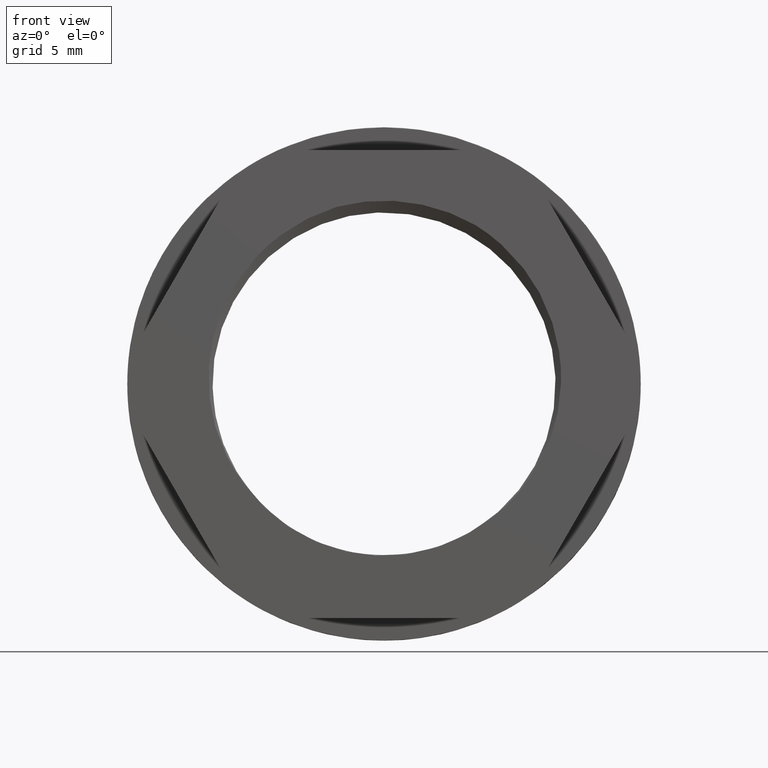
[diagram: clean part render]
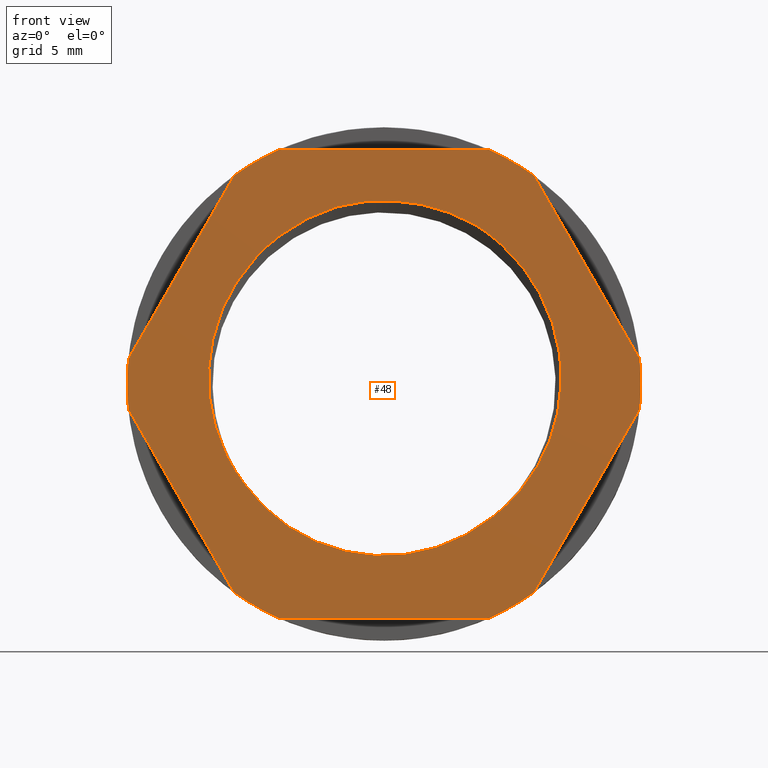
[diagram: same view with one face highlighted and labeled with its STEP entity id]
A machine part, front view. The second image highlights one B-rep face of the part: STEP entity #48.
In plain terms, the highlighted planar face has unit normal (-0, 1, 0).
Its self-contained STEP definition (entity closure, byte-faithful):
#36 = EDGE_CURVE ( 'NONE', #1014, #1024, #743, .T. ) ;
#48 = ADVANCED_FACE ( 'NONE', ( #817, #725 ), #738, .F. ) ;
#58 = EDGE_CURVE ( 'NONE', #1003, #1008, #1765, .T. ) ;
#64 = EDGE_CURVE ( 'NONE', #1030, #1020, #140, .T. ) ;
#80 = EDGE_CURVE ( 'NONE', #995, #1080, #1720, .T. ) ;
#83 = EDGE_CURVE ( 'NONE', #987, #991, #1731, .T. ) ;
#85 = EDGE_CURVE ( 'NONE', #997, #1057, #1733, .T. ) ;
#86 = EDGE_CURVE ( 'NONE', #1057, #1030, #149, .T. ) ;
#88 = EDGE_CURVE ( 'NONE', #1037, #1021, #1730, .T. ) ;
#96 = EDGE_CURVE ( 'NONE', #1008, #1014, #1791, .T. ) ;
#99 = EDGE_CURVE ( 'NONE', #993, #1006, #1771, .T. ) ;
#100 = EDGE_CURVE ( 'NONE', #1080, #1003, #278, .T. ) ;
#107 = EDGE_CURVE ( 'NONE', #991, #1037, #311, .T. ) ;
#110 = EDGE_CURVE ( 'NONE', #1001, #987, #1770, .T. ) ;
#112 = EDGE_CURVE ( 'NONE', #1021, #995, #375, .T. ) ;
#114 = EDGE_CURVE ( 'NONE', #1006, #1001, #353, .T. ) ;
#116 = EDGE_CURVE ( 'NONE', #1025, #993, #374, .T. ) ;
#121 = EDGE_CURVE ( 'NONE', #1024, #1025, #1788, .T. ) ;
#124 = EDGE_CURVE ( 'NONE', #1020, #997, #138, .T. ) ;
#138 = B_SPLINE_CURVE_WITH_KNOTS ( 'NONE', 3,
 ( #366, #363, #430, #412, #395, #413, #417, #409, #441, #419, #436, #416, #415, #407, #421, #423, #394, #442, #406, #414, #408, #427, #398, #418, #403, #424, #437, #396, #428, #429 ),
 .UNSPECIFIED., .F., .F.,
 ( 4, 2, 2, 2, 2, 2, 2, 2, 2, 2, 2, 2, 2, 2, 4 ),
 ( 2.074209955580388900E-016, 0.001466203003493911000, 0.002932406006987614300, 0.005864812013975017000, 0.007331015017468718900, 0.008797218020962421800, 0.01026342102445612500, 0.01172962402794982600, 0.01319582703144352500, 0.01466203003493722600, 0.01759443604192462500, 0.01906063904541832600, 0.02052684204891202400, 0.02199304505240572100, 0.02345924805589941600 ),
 .UNSPECIFIED. ) ;
#140 = B_SPLINE_CURVE_WITH_KNOTS ( 'NONE', 3,
 ( #834, #819, #824, #857, #826, #854, #830, #831, #852, #835, #836, #837, #838, #839, #905, #879, #874, #903, #919, #901, #880, #873 ),
 .UNSPECIFIED., .F., .F.,
 ( 4, 2, 2, 2, 2, 2, 2, 2, 2, 2, 4 ),
 ( 1.554320946789687800E-016, 0.004797348109186391600, 0.005996685136482950700, 0.007196022163779508900, 0.009594696218372630500, 0.01079403324566919000, 0.01199337027296574900, 0.01439204432755886900, 0.01559138135485542800, 0.01679071838215198700, 0.01918939243674510500 ),
 .UNSPECIFIED. ) ;
#149 = B_SPLINE_CURVE_WITH_KNOTS ( 'NONE', 3,
 ( #197, #167, #151, #170, #219, #220, #240, #217, #221, #233, #242, #218, #211, #228, #223, #222, #225, #212, #205, #231, #224, #210, #227, #239, #213, #234, #214, #208 ),
 .UNSPECIFIED., .F., .F.,
 ( 4, 2, 2, 2, 2, 2, 2, 2, 2, 2, 2, 2, 2, 4 ),
 ( 2.557173051301434000E-016, 0.001476195468397280600, 0.002952390936794305800, 0.005904781873588352300, 0.008857172810382396600, 0.01033336827877942000, 0.01180956374717644400, 0.01328575921557346500, 0.01476195468397048900, 0.01771434562076453600, 0.01919054108916156200, 0.02066673655755858800, 0.02214293202595561300, 0.02361912749435263500 ),
 .UNSPECIFIED. ) ;
#151 = CARTESIAN_POINT ( 'NONE',  ( 7.039766989748321700, -15.99999999999999300, 10.30091305374687700 ) ) ;
#155 = DIRECTION ( 'NONE',  ( -1.224646799147352000E-016, 1.000000000000000000, 0.0000000000000000000 ) ) ;
#159 = CARTESIAN_POINT ( 'NONE',  ( 1.959434878635765100E-015, -16.00000000000000000, 0.0000000000000000000 ) ) ;
#162 = DIRECTION ( 'NONE',  ( -1.000000000000000000, 0.0000000000000000000, 0.0000000000000000000 ) ) ;
#166 = CARTESIAN_POINT ( 'NONE',  ( 1.959434878635765100E-015, -16.00000000000000000, 0.0000000000000000000 ) ) ;
#167 = CARTESIAN_POINT ( 'NONE',  ( 6.637294627931194800, -16.00000000000000400, 10.58417350714386300 ) ) ;
#170 = CARTESIAN_POINT ( 'NONE',  ( 7.810515772152957200, -15.99999999999999300, 9.687766479014685600 ) ) ;
#172 = DIRECTION ( 'NONE',  ( 1.224646799147352000E-016, -1.000000000000000000, 0.0000000000000000000 ) ) ;
#173 = DIRECTION ( 'NONE',  ( 1.000000000000000000, 1.982541115402065400E-016, 0.0000000000000000000 ) ) ;
#182 = DIRECTION ( 'NONE',  ( 1.224646799147352000E-016, -1.000000000000000000, 0.0000000000000000000 ) ) ;
#185 = DIRECTION ( 'NONE',  ( 1.000000000000000000, 1.982541115402065400E-016, 0.0000000000000000000 ) ) ;
#186 = CARTESIAN_POINT ( 'NONE',  ( 1.959434878635765100E-015, -16.00000000000000000, 0.0000000000000000000 ) ) ;
#197 = CARTESIAN_POINT ( 'NONE',  ( 6.217603876095830100, -16.00000000000000000, 10.84395693646734100 ) ) ;
#199 = DIRECTION ( 'NONE',  ( 1.224646799147352000E-016, -1.000000000000000000, 0.0000000000000000000 ) ) ;
#205 = CARTESIAN_POINT ( 'NONE',  ( 11.40519917449442200, -15.99999999999998900, -3.664792895534455300 ) ) ;
#208 = CARTESIAN_POINT ( 'NONE',  ( 7.354977606347029400, -16.00000000000000000, -9.099137564084509600 ) ) ;
#210 = CARTESIAN_POINT ( 'NONE',  ( 10.04755009801750300, -15.99999999999999300, -6.272685415348479200 ) ) ;
#211 = CARTESIAN_POINT ( 'NONE',  ( 12.01999044445648400, -16.00000000000000000, 1.638251453895202700 ) ) ;
#212 = CARTESIAN_POINT ( 'NONE',  ( 11.69809045638864800, -16.00000000000000000, -2.736586120514878500 ) ) ;
#213 = CARTESIAN_POINT ( 'NONE',  ( 8.829934337205806100, -16.00000000000000000, -7.793109454905977200 ) ) ;
#214 = CARTESIAN_POINT ( 'NONE',  ( 7.749668220871910800, -16.00000000000000000, -8.802180046527249500 ) ) ;
#217 = CARTESIAN_POINT ( 'NONE',  ( 10.82986516249368100, -16.00000000000000000, 5.858301046401534200 ) ) ;
#218 = CARTESIAN_POINT ( 'NONE',  ( 11.96089681212426800, -15.99999999999999600, 2.123578367866075100 ) ) ;
#219 = CARTESIAN_POINT ( 'NONE',  ( 8.178548286073594300, -16.00000000000000400, 9.357612876792176200 ) ) ;
#220 = CARTESIAN_POINT ( 'NONE',  ( 9.211309090137032000, -16.00000000000000000, 8.316264565264695800 ) ) ;
#221 = CARTESIAN_POINT ( 'NONE',  ( 11.22890327986613100, -16.00000000000000700, 4.966738550962868500 ) ) ;
#222 = CARTESIAN_POINT ( 'NONE',  ( 12.02445533889331500, -15.99999999999998900, -0.7958916144829389900 ) ) ;
#223 = CARTESIAN_POINT ( 'NONE',  ( 12.08147973840204900, -15.99999999999998600, 0.1792830442188519400 ) ) ;
#224 = CARTESIAN_POINT ( 'NONE',  ( 10.56130413453417900, -15.99999999999999300, -5.439010198922743700 ) ) ;
#225 = CARTESIAN_POINT ( 'NONE',  ( 11.96515227332718500, -15.99999999999999600, -1.287694864528181200 ) ) ;
#226 = CARTESIAN_POINT ( 'NONE',  ( 1.959434878635765100E-015, -16.00000000000000000, 0.0000000000000000000 ) ) ;
#227 = CARTESIAN_POINT ( 'NONE',  ( 9.766714365813101000, -16.00000000000000700, -6.671006321426826700 ) ) ;
#228 = CARTESIAN_POINT ( 'NONE',  ( 12.08016919239959600, -15.99999999999999600, 0.6661008837817593600 ) ) ;
#231 = CARTESIAN_POINT ( 'NONE',  ( 10.79509486800528600, -15.99999999999999600, -5.001017152656960900 ) ) ;
#233 = CARTESIAN_POINT ( 'NONE',  ( 11.66436645213356000, -16.00000000000000700, 3.570368300231387100 ) ) ;
#234 = CARTESIAN_POINT ( 'NONE',  ( 8.125465860664778700, -16.00000000000000000, -8.479389344244678400 ) ) ;
#236 = DIRECTION ( 'NONE',  ( 1.000000000000000000, 1.982541115402065400E-016, 0.0000000000000000000 ) ) ;
#239 = CARTESIAN_POINT ( 'NONE',  ( 9.157905341475903100, -15.99999999999999600, -7.431217457108224300 ) ) ;
#240 = CARTESIAN_POINT ( 'NONE',  ( 9.811959289139878100, -16.00000000000000400, 7.548268672424547400 ) ) ;
#242 = CARTESIAN_POINT ( 'NONE',  ( 11.78264398568951100, -16.00000000000000400, 3.092682377532045600 ) ) ;
#250 = DIRECTION ( 'NONE',  ( 1.224646799147352000E-016, -1.000000000000000000, 0.0000000000000000000 ) ) ;
#252 = DIRECTION ( 'NONE',  ( 1.000000000000000000, 1.982541115402065400E-016, 0.0000000000000000000 ) ) ;
#256 = CARTESIAN_POINT ( 'NONE',  ( 1.959434878635765100E-015, -16.00000000000000000, 0.0000000000000000000 ) ) ;
#260 = DIRECTION ( 'NONE',  ( 1.000000000000000000, 1.982541115402065400E-016, 0.0000000000000000000 ) ) ;
#261 = DIRECTION ( 'NONE',  ( -0.4999999999999998900, -2.409163893373264600E-016, -0.8660254037844387100 ) ) ;
#262 = CARTESIAN_POINT ( 'NONE',  ( -10.21284478311344100, -16.00000000000000000, 14.21083394583276100 ) ) ;
#272 = DIRECTION ( 'NONE',  ( 1.224646799147352000E-016, -1.000000000000000000, 0.0000000000000000000 ) ) ;
#278 = LINE ( 'NONE', #262, #1782 ) ;
#284 = CARTESIAN_POINT ( 'NONE',  ( 1.959434878635765100E-015, -16.00000000000000000, 0.0000000000000000000 ) ) ;
#308 = DIRECTION ( 'NONE',  ( -0.5000000000000003300, -2.409163893373266000E-016, 0.8660254037844383700 ) ) ;
#311 = LINE ( 'NONE', #325, #1804 ) ;
#325 = CARTESIAN_POINT ( 'NONE',  ( 17.41336559761014900, -16.00000000000000000, 1.739166054167255100 ) ) ;
#344 = CARTESIAN_POINT ( 'NONE',  ( 1.959434878635765100E-015, -16.00000000000000000, 0.0000000000000000000 ) ) ;
#352 = DIRECTION ( 'NONE',  ( 1.000000000000000000, 0.0000000000000000000, 0.0000000000000000000 ) ) ;
#353 = LINE ( 'NONE', #386, #1800 ) ;
#363 = CARTESIAN_POINT ( 'NONE',  ( -9.843661647919216100, -16.00000000000000000, -6.374829116193574800 ) ) ;
#366 = CARTESIAN_POINT ( 'NONE',  ( -9.546128516311240400, -16.00000000000000000, -6.764719532254780200 ) ) ;
#368 = DIRECTION ( 'NONE',  ( -1.000000000000000000, 0.0000000000000000000, -4.818327786746520200E-016 ) ) ;
#369 = DIRECTION ( 'NONE',  ( 1.224646799147352000E-016, -1.000000000000000000, 0.0000000000000000000 ) ) ;
#373 = DIRECTION ( 'NONE',  ( 0.4999999999999998900, 2.409163893373264600E-016, 0.8660254037844387100 ) ) ;
#374 = LINE ( 'NONE', #378, #1787 ) ;
#375 = LINE ( 'NONE', #380, #1794 ) ;
#377 = DIRECTION ( 'NONE',  ( 1.000000000000000000, 1.982541115402065400E-016, 0.0000000000000000000 ) ) ;
#378 = CARTESIAN_POINT ( 'NONE',  ( -7.200520814496690600, -16.00000000000000000, -15.94999999999999900 ) ) ;
#380 = CARTESIAN_POINT ( 'NONE',  ( 7.200520814496690600, -16.00000000000000000, 15.94999999999999900 ) ) ;
#386 = CARTESIAN_POINT ( 'NONE',  ( 10.21284478311344100, -16.00000000000000000, -14.21083394583274100 ) ) ;
#392 = DIRECTION ( 'NONE',  ( 1.224646799147352000E-016, -1.000000000000000000, 0.0000000000000000000 ) ) ;
#394 = CARTESIAN_POINT ( 'NONE',  ( -10.97568106940316600, -16.00000000000000400, 5.211554523778685800 ) ) ;
#395 = CARTESIAN_POINT ( 'NONE',  ( -10.82797404529382800, -16.00000000000000700, -4.683749242551724200 ) ) ;
#396 = CARTESIAN_POINT ( 'NONE',  ( -4.139042827958791200, -15.99999999999998900, 11.76983968631707000 ) ) ;
#398 = CARTESIAN_POINT ( 'NONE',  ( -7.480483743108298000, -16.00000000000000400, 9.820195063892709800 ) ) ;
#400 = CARTESIAN_POINT ( 'NONE',  ( 17.50000000000000400, -15.99999999999999600, 2.143131898507868600E-015 ) ) ;
#403 = CARTESIAN_POINT ( 'NONE',  ( -6.301784720250021900, -15.99999999999999600, 10.67185325561260000 ) ) ;
#406 = CARTESIAN_POINT ( 'NONE',  ( -10.31440738845941100, -16.00000000000001100, 6.517162775437402200 ) ) ;
#407 = CARTESIAN_POINT ( 'NONE',  ( -11.59996383858692300, -15.99999999999999600, 3.380749462419709900 ) ) ;
#408 = CARTESIAN_POINT ( 'NONE',  ( -8.911664519539416000, -16.00000000000001100, 8.492252623646594500 ) ) ;
#409 = CARTESIAN_POINT ( 'NONE',  ( -11.89559674187534500, -15.99999999999999300, -0.9634367413445119600 ) ) ;
#412 = CARTESIAN_POINT ( 'NONE',  ( -10.60771608168651300, -16.00000000000000000, -5.123091696641753700 ) ) ;
#413 = CARTESIAN_POINT ( 'NONE',  ( -11.39905316272697200, -16.00000000000001100, -3.344423681642951300 ) ) ;
#414 = CARTESIAN_POINT ( 'NONE',  ( -9.527241077474522900, -16.00000000000001100, 7.746846388121149100 ) ) ;
#415 = CARTESIAN_POINT ( 'NONE',  ( -11.80205681790515400, -16.00000000000000400, 2.425045817471351400 ) ) ;
#416 = CARTESIAN_POINT ( 'NONE',  ( -11.87416033194666400, -16.00000000000000700, 1.939950991727515300 ) ) ;
#417 = CARTESIAN_POINT ( 'NONE',  ( -11.66710811391989100, -15.99999999999998900, -2.414721140975212100 ) ) ;
#418 = CARTESIAN_POINT ( 'NONE',  ( -6.704641944580431300, -15.99999999999999600, 10.40411295826407400 ) ) ;
#419 = CARTESIAN_POINT ( 'NONE',  ( -11.97237240651577000, -15.99999999999999600, 0.4906093263644557000 ) ) ;
#420 = CARTESIAN_POINT ( 'NONE',  ( 1.959434878635765100E-015, -16.00000000000000000, 0.0000000000000000000 ) ) ;
#421 = CARTESIAN_POINT ( 'NONE',  ( -11.47099502475424500, -15.99999999999999600, 3.848375777542166500 ) ) ;
#423 = CARTESIAN_POINT ( 'NONE',  ( -11.15885524951781900, -15.99999999999999600, 4.763778897587928700 ) ) ;
#424 = CARTESIAN_POINT ( 'NONE',  ( -5.466552077632044000, -15.99999999999998900, 11.15947128705645300 ) ) ;
#427 = CARTESIAN_POINT ( 'NONE',  ( -7.855663736040857400, -16.00000000000000400, 9.501706193687944300 ) ) ;
#428 = CARTESIAN_POINT ( 'NONE',  ( -3.677885474590973900, -16.00000000000000700, 11.93948721475595000 ) ) ;
#429 = CARTESIAN_POINT ( 'NONE',  ( -3.208678091689120200, -16.00000000000000000, 12.08115826003096100 ) ) ;
#430 = CARTESIAN_POINT ( 'NONE',  ( -10.11540416422643100, -15.99999999999999600, -5.968473355729902800 ) ) ;
#431 = DIRECTION ( 'NONE',  ( 1.000000000000000000, 1.982541115402065400E-016, 0.0000000000000000000 ) ) ;
#435 = CARTESIAN_POINT ( 'NONE',  ( 17.41336559761014900, -16.00000000000000000, 1.739166054167255100 ) ) ;
#436 = CARTESIAN_POINT ( 'NONE',  ( -11.95900939930663800, -16.00000000000000400, 0.9740992699820195700 ) ) ;
#437 = CARTESIAN_POINT ( 'NONE',  ( -5.034178413639876800, -15.99999999999999300, 11.37935186567101400 ) ) ;
#438 = CARTESIAN_POINT ( 'NONE',  ( 7.200520814496690600, -16.00000000000000000, -15.94999999999999900 ) ) ;
#439 = CARTESIAN_POINT ( 'NONE',  ( -7.200520814496700300, -16.00000000000000000, 15.94999999999999900 ) ) ;
#441 = CARTESIAN_POINT ( 'NONE',  ( -11.94115599613400700, -15.99999999999998900, -0.4774952203777301800 ) ) ;
#442 = CARTESIAN_POINT ( 'NONE',  ( -10.55438762958273100, -16.00000000000000000, 6.086984194883259000 ) ) ;
#443 = CARTESIAN_POINT ( 'NONE',  ( -3.208678091689120200, -16.00000000000000000, 12.08115826003096100 ) ) ;
#446 = CARTESIAN_POINT ( 'NONE',  ( 17.41336559761014900, -16.00000000000000000, -1.739166054167250000 ) ) ;
#453 = CARTESIAN_POINT ( 'NONE',  ( 10.21284478311344100, -16.00000000000000000, 14.21083394583274100 ) ) ;
#465 = CARTESIAN_POINT ( 'NONE',  ( -17.41336559761014900, -16.00000000000000000, 1.739166054167250000 ) ) ;
#470 = CARTESIAN_POINT ( 'NONE',  ( -10.21284478311344100, -16.00000000000000000, -14.21083394583274100 ) ) ;
#475 = CARTESIAN_POINT ( 'NONE',  ( -17.49999999999999600, -16.00000000000000400, 0.0000000000000000000 ) ) ;
#482 = CARTESIAN_POINT ( 'NONE',  ( 7.354977606347029400, -16.00000000000000000, -9.099137564084509600 ) ) ;
#486 = CARTESIAN_POINT ( 'NONE',  ( 7.200520814496690600, -16.00000000000000000, 15.94999999999999900 ) ) ;
#488 = CARTESIAN_POINT ( 'NONE',  ( -7.200520814496690600, -16.00000000000000000, -15.94999999999999900 ) ) ;
#490 = CARTESIAN_POINT ( 'NONE',  ( 6.217603876095830100, -16.00000000000000000, 10.84395693646734100 ) ) ;
#491 = CARTESIAN_POINT ( 'NONE',  ( 10.21284478311344100, -16.00000000000000000, -14.21083394583276100 ) ) ;
#495 = CARTESIAN_POINT ( 'NONE',  ( -17.41336559761014900, -16.00000000000000000, -1.739166054167250000 ) ) ;
#496 = CARTESIAN_POINT ( 'NONE',  ( -9.546128516311240400, -16.00000000000000000, -6.764719532254780200 ) ) ;
#497 = CARTESIAN_POINT ( 'NONE',  ( -10.21284478311344100, -16.00000000000000000, 14.21083394583276100 ) ) ;
#725 = FACE_BOUND ( 'NONE', #1219, .T. ) ;
#738 = PLANE ( 'NONE',  #1759 ) ;
#743 = LINE ( 'NONE', #746, #1702 ) ;
#746 = CARTESIAN_POINT ( 'NONE',  ( -17.41336559761014900, -16.00000000000000000, -1.739166054167250000 ) ) ;
#748 = DIRECTION ( 'NONE',  ( 0.4999999999999998900, 2.409163893373264600E-016, -0.8660254037844387100 ) ) ;
#793 = DIRECTION ( 'NONE',  ( -1.000000000000000000, -1.224646799147352000E-016, 0.0000000000000000000 ) ) ;
#805 = DIRECTION ( 'NONE',  ( -1.224646799147352000E-016, 1.000000000000000000, 0.0000000000000000000 ) ) ;
#817 = FACE_OUTER_BOUND ( 'NONE', #1233, .T. ) ;
#818 = CARTESIAN_POINT ( 'NONE',  ( 15.94999999999999900, -16.00000000000000000, 0.0000000000000000000 ) ) ;
#819 = CARTESIAN_POINT ( 'NONE',  ( 6.110646306400078700, -16.00000000000000000, -10.10495034376052500 ) ) ;
#824 = CARTESIAN_POINT ( 'NONE',  ( 4.660942753764408600, -15.99999999999999600, -10.84952101121122900 ) ) ;
#826 = CARTESIAN_POINT ( 'NONE',  ( 2.349491185291309800, -16.00000000000001100, -11.46862683421638900 ) ) ;
#830 = CARTESIAN_POINT ( 'NONE',  ( 1.165062964512434400, -16.00000000000001100, -11.64857600987899000 ) ) ;
#831 = CARTESIAN_POINT ( 'NONE',  ( -0.01990270330349088600, -16.00000000000000700, -11.72673795048001600 ) ) ;
#834 = CARTESIAN_POINT ( 'NONE',  ( 7.354977606347029400, -16.00000000000000000, -9.099137564084509600 ) ) ;
#835 = CARTESIAN_POINT ( 'NONE',  ( -1.987837636187196800, -15.99999999999999600, -11.53672665186419600 ) ) ;
#836 = CARTESIAN_POINT ( 'NONE',  ( -2.382017488109619700, -16.00000000000000700, -11.46189697614687700 ) ) ;
#837 = CARTESIAN_POINT ( 'NONE',  ( -3.157066726535303000, -16.00000000000001100, -11.27306609976490200 ) ) ;
#838 = CARTESIAN_POINT ( 'NONE',  ( -3.539089570212806900, -15.99999999999999300, -11.15905329088629300 ) ) ;
#839 = CARTESIAN_POINT ( 'NONE',  ( -4.668569332561915500, -15.99999999999999600, -10.75792553080654400 ) ) ;
#852 = CARTESIAN_POINT ( 'NONE',  ( -0.8081332876183725500, -15.99999999999998900, -11.69902396869698800 ) ) ;
#854 = CARTESIAN_POINT ( 'NONE',  ( 1.561954761062173100, -16.00000000000000700, -11.60214668139759000 ) ) ;
#857 = CARTESIAN_POINT ( 'NONE',  ( 2.738601644144027500, -16.00000000000000400, -11.38196893688008300 ) ) ;
#860 = DIRECTION ( 'NONE',  ( 1.224646799147352000E-016, -1.000000000000000000, 0.0000000000000000000 ) ) ;
#862 = CARTESIAN_POINT ( 'NONE',  ( 1.959434878635765100E-015, -16.00000000000000000, 0.0000000000000000000 ) ) ;
#868 = DIRECTION ( 'NONE',  ( 1.000000000000000000, 1.982541115402065400E-016, 0.0000000000000000000 ) ) ;
#873 = CARTESIAN_POINT ( 'NONE',  ( -9.546128516311240400, -16.00000000000000000, -6.764719532254780200 ) ) ;
#874 = CARTESIAN_POINT ( 'NONE',  ( -6.746090511052643500, -16.00000000000000700, -9.567624644063242200 ) ) ;
#879 = CARTESIAN_POINT ( 'NONE',  ( -6.416439828566012700, -16.00000000000000700, -9.791770851078947400 ) ) ;
#880 = CARTESIAN_POINT ( 'NONE',  ( -9.083581808446785600, -16.00000000000000000, -7.417448783928430000 ) ) ;
#901 = CARTESIAN_POINT ( 'NONE',  ( -8.561039745374550600, -16.00000000000000400, -8.014402490853346000 ) ) ;
#903 = CARTESIAN_POINT ( 'NONE',  ( -7.382176847620435500, -16.00000000000000400, -9.085848529634288800 ) ) ;
#905 = CARTESIAN_POINT ( 'NONE',  ( -5.392567418065074700, -16.00000000000000400, -10.41384283231761500 ) ) ;
#919 = CARTESIAN_POINT ( 'NONE',  ( -7.688906537457064000, -16.00000000000000400, -8.827724987791015100 ) ) ;
#987 = VERTEX_POINT ( 'NONE', #400 ) ;
#991 = VERTEX_POINT ( 'NONE', #435 ) ;
#993 = VERTEX_POINT ( 'NONE', #438 ) ;
#995 = VERTEX_POINT ( 'NONE', #439 ) ;
#997 = VERTEX_POINT ( 'NONE', #443 ) ;
#1001 = VERTEX_POINT ( 'NONE', #446 ) ;
#1003 = VERTEX_POINT ( 'NONE', #465 ) ;
#1006 = VERTEX_POINT ( 'NONE', #491 ) ;
#1008 = VERTEX_POINT ( 'NONE', #475 ) ;
#1014 = VERTEX_POINT ( 'NONE', #495 ) ;
#1020 = VERTEX_POINT ( 'NONE', #496 ) ;
#1021 = VERTEX_POINT ( 'NONE', #486 ) ;
#1024 = VERTEX_POINT ( 'NONE', #470 ) ;
#1025 = VERTEX_POINT ( 'NONE', #488 ) ;
#1030 = VERTEX_POINT ( 'NONE', #482 ) ;
#1037 = VERTEX_POINT ( 'NONE', #453 ) ;
#1057 = VERTEX_POINT ( 'NONE', #490 ) ;
#1080 = VERTEX_POINT ( 'NONE', #497 ) ;
#1148 = ORIENTED_EDGE ( 'NONE', *, *, #83, .T. ) ;
#1150 = ORIENTED_EDGE ( 'NONE', *, *, #107, .T. ) ;
#1154 = ORIENTED_EDGE ( 'NONE', *, *, #110, .T. ) ;
#1157 = ORIENTED_EDGE ( 'NONE', *, *, #100, .T. ) ;
#1158 = ORIENTED_EDGE ( 'NONE', *, *, #88, .T. ) ;
#1161 = ORIENTED_EDGE ( 'NONE', *, *, #36, .T. ) ;
#1162 = ORIENTED_EDGE ( 'NONE', *, *, #114, .T. ) ;
#1166 = ORIENTED_EDGE ( 'NONE', *, *, #64, .T. ) ;
#1170 = ORIENTED_EDGE ( 'NONE', *, *, #58, .T. ) ;
#1187 = ORIENTED_EDGE ( 'NONE', *, *, #112, .T. ) ;
#1188 = ORIENTED_EDGE ( 'NONE', *, *, #99, .T. ) ;
#1192 = ORIENTED_EDGE ( 'NONE', *, *, #121, .T. ) ;
#1201 = ORIENTED_EDGE ( 'NONE', *, *, #124, .T. ) ;
#1208 = ORIENTED_EDGE ( 'NONE', *, *, #80, .T. ) ;
#1215 = ORIENTED_EDGE ( 'NONE', *, *, #96, .T. ) ;
#1216 = ORIENTED_EDGE ( 'NONE', *, *, #116, .T. ) ;
#1219 = EDGE_LOOP ( 'NONE', ( #1250, #1253, #1166, #1201 ) ) ;
#1233 = EDGE_LOOP ( 'NONE', ( #1154, #1148, #1150, #1158, #1187, #1208, #1157, #1170, #1215, #1161, #1192, #1216, #1188, #1162 ) ) ;
#1250 = ORIENTED_EDGE ( 'NONE', *, *, #85, .T. ) ;
#1253 = ORIENTED_EDGE ( 'NONE', *, *, #86, .T. ) ;
#1702 = VECTOR ( 'NONE', #748, 1000.000000000000000 ) ;
#1720 = CIRCLE ( 'NONE', #1727, 17.50000000000000000 ) ;
#1727 = AXIS2_PLACEMENT_3D ( 'NONE', #166, #172, #185 ) ;
#1730 = CIRCLE ( 'NONE', #1742, 17.50000000000000000 ) ;
#1731 = CIRCLE ( 'NONE', #1756, 17.50000000000000000 ) ;
#1733 = CIRCLE ( 'NONE', #1739, 12.50000000000000000 ) ;
#1739 = AXIS2_PLACEMENT_3D ( 'NONE', #159, #155, #162 ) ;
#1742 = AXIS2_PLACEMENT_3D ( 'NONE', #226, #199, #236 ) ;
#1750 = AXIS2_PLACEMENT_3D ( 'NONE', #862, #860, #868 ) ;
#1756 = AXIS2_PLACEMENT_3D ( 'NONE', #186, #182, #173 ) ;
#1759 = AXIS2_PLACEMENT_3D ( 'NONE', #818, #805, #793 ) ;
#1765 = CIRCLE ( 'NONE', #1750, 17.50000000000000000 ) ;
#1769 = AXIS2_PLACEMENT_3D ( 'NONE', #284, #272, #260 ) ;
#1770 = CIRCLE ( 'NONE', #1774, 17.50000000000000000 ) ;
#1771 = CIRCLE ( 'NONE', #1805, 17.50000000000000000 ) ;
#1774 = AXIS2_PLACEMENT_3D ( 'NONE', #344, #369, #377 ) ;
#1782 = VECTOR ( 'NONE', #261, 1000.000000000000000 ) ;
#1787 = VECTOR ( 'NONE', #352, 1000.000000000000000 ) ;
#1788 = CIRCLE ( 'NONE', #1802, 17.50000000000000000 ) ;
#1791 = CIRCLE ( 'NONE', #1769, 17.50000000000000000 ) ;
#1794 = VECTOR ( 'NONE', #368, 1000.000000000000000 ) ;
#1800 = VECTOR ( 'NONE', #373, 1000.000000000000000 ) ;
#1802 = AXIS2_PLACEMENT_3D ( 'NONE', #420, #392, #431 ) ;
#1804 = VECTOR ( 'NONE', #308, 1000.000000000000100 ) ;
#1805 = AXIS2_PLACEMENT_3D ( 'NONE', #256, #250, #252 ) ;